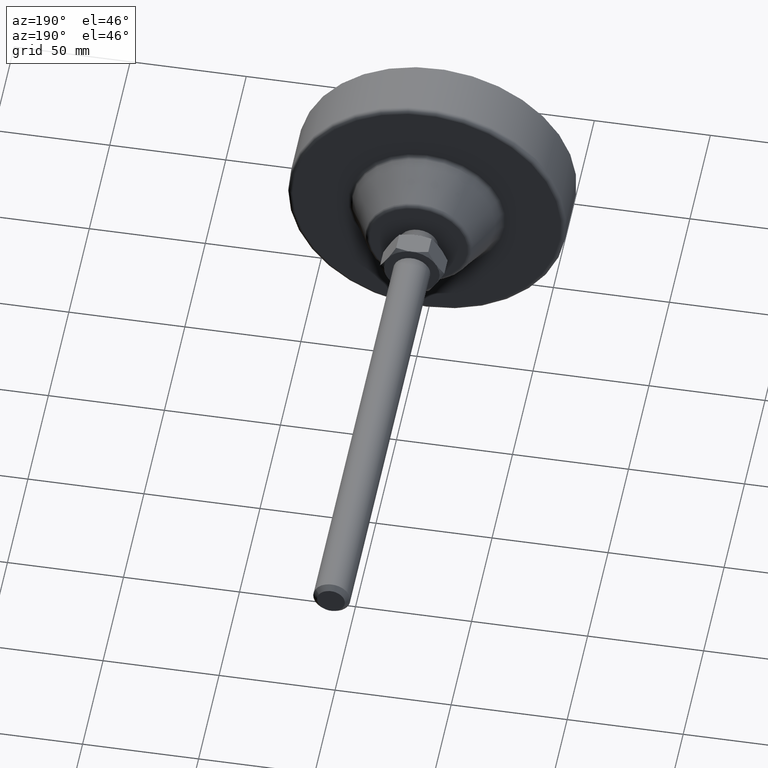
[diagram: clean part render]
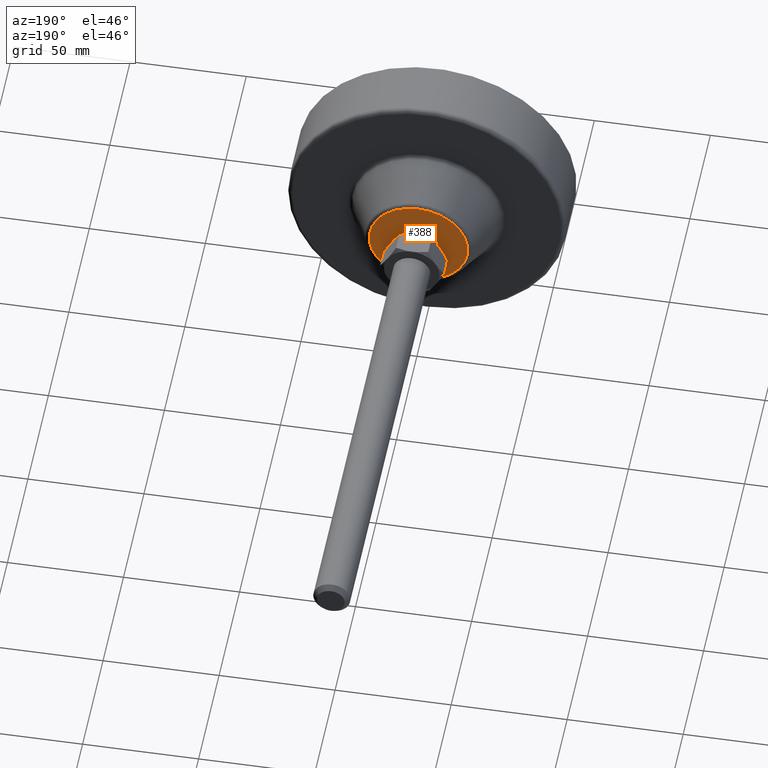
[diagram: same view with one face highlighted and labeled with its STEP entity id]
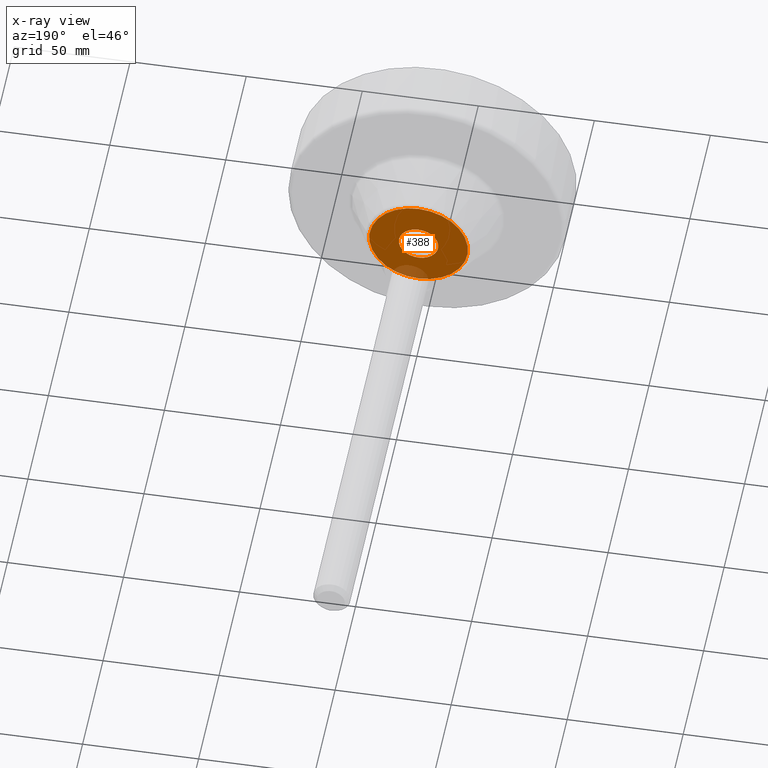
[diagram: x-ray of the same camera — body ghosted, the highlighted face saturated]
A machine part, auxiliary view. The second image highlights one B-rep face of the part: STEP entity #388.
The next image is the same camera in x-ray: the body ghosted, the highlighted face saturated — about 6% of this face is hidden behind the body in this view.
In plain terms, the highlighted planar face has unit normal (0, 1, 0).
Its self-contained STEP definition (entity closure, byte-faithful):
#49=FACE_BOUND('',#124,.T.);
#53=PLANE('',#486);
#98=FACE_OUTER_BOUND('',#123,.T.);
#123=EDGE_LOOP('',(#289,#290));
#124=EDGE_LOOP('',(#291));
#154=CIRCLE('',#483,21.2639320225002);
#156=CIRCLE('',#485,21.2639320225002);
#157=CIRCLE('',#487,8.5);
#180=VERTEX_POINT('',#669);
#181=VERTEX_POINT('',#670);
#182=VERTEX_POINT('',#675);
#222=EDGE_CURVE('',#180,#181,#154,.T.);
#224=EDGE_CURVE('',#181,#180,#156,.T.);
#225=EDGE_CURVE('',#182,#182,#157,.T.);
#289=ORIENTED_EDGE('',*,*,#222,.F.);
#290=ORIENTED_EDGE('',*,*,#224,.F.);
#291=ORIENTED_EDGE('',*,*,#225,.T.);
#388=ADVANCED_FACE('',(#98,#49),#53,.T.);
#483=AXIS2_PLACEMENT_3D('',#671,#553,#554);
#485=AXIS2_PLACEMENT_3D('',#673,#557,#558);
#486=AXIS2_PLACEMENT_3D('',#674,#559,#560);
#487=AXIS2_PLACEMENT_3D('',#676,#561,#562);
#553=DIRECTION('center_axis',(0.,-1.,0.));
#554=DIRECTION('ref_axis',(6.12323399573677E-17,0.,-1.));
#557=DIRECTION('center_axis',(0.,-1.,0.));
#558=DIRECTION('ref_axis',(6.12323399573677E-17,0.,-1.));
#559=DIRECTION('center_axis',(0.,1.,0.));
#560=DIRECTION('ref_axis',(0.,0.,1.));
#561=DIRECTION('center_axis',(0.,-1.,0.));
#562=DIRECTION('ref_axis',(0.,0.,-1.));
#669=CARTESIAN_POINT('',(-3.90612094329627E-15,46.,21.2639320225002));
#670=CARTESIAN_POINT('',(-2.60408062886418E-15,46.,-21.2639320225002));
#671=CARTESIAN_POINT('Origin',(0.,46.,0.));
#673=CARTESIAN_POINT('Origin',(0.,46.,0.));
#674=CARTESIAN_POINT('Origin',(0.,46.,0.));
#675=CARTESIAN_POINT('',(0.,46.,8.5));
#676=CARTESIAN_POINT('Origin',(0.,46.,0.));